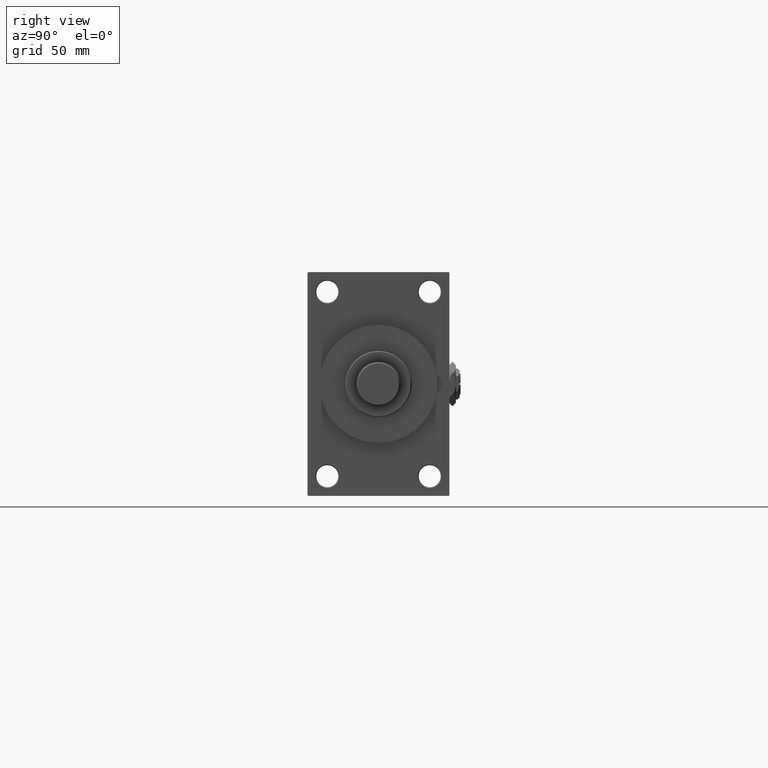
[diagram: clean part render]
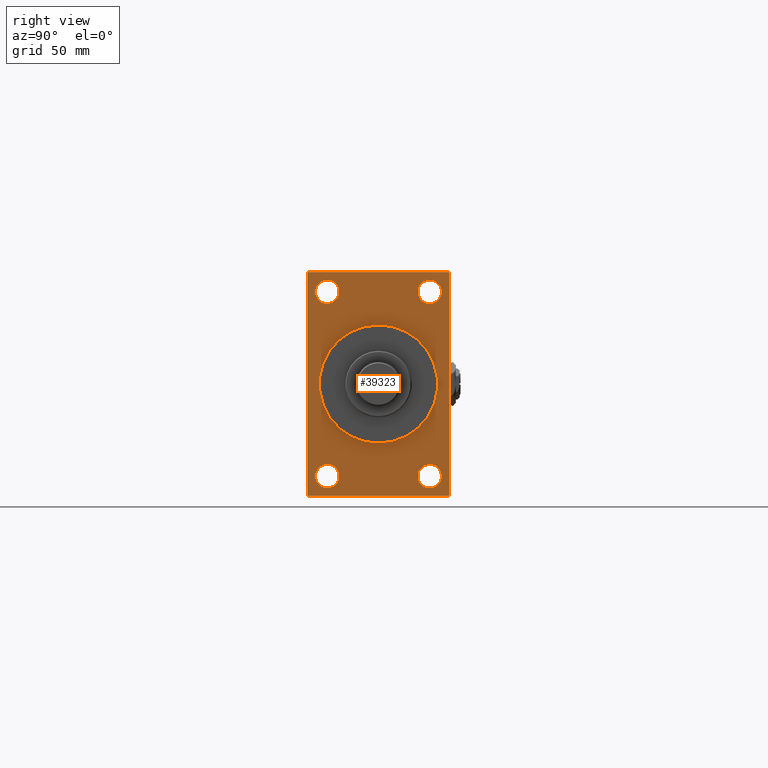
[diagram: same view with one face highlighted and labeled with its STEP entity id]
A machine part, right view. The second image highlights one B-rep face of the part: STEP entity #39323.
In plain terms, the highlighted planar face has unit normal (-1, 0, 0).
Its self-contained STEP definition (entity closure, byte-faithful):
#1305 = VECTOR ( 'NONE', #38583, 1000.000000000000000 ) ;
#1530 = CARTESIAN_POINT ( 'NONE',  ( 339.9999999999999432, 0.000000000000000000, 0.000000000000000000 ) ) ;
#1598 = ORIENTED_EDGE ( 'NONE', *, *, #34825, .T. ) ;
#2098 = DIRECTION ( 'NONE',  ( 0.000000000000000000, -1.000000000000000000, -1.541976423090495387E-16 ) ) ;
#2100 = VECTOR ( 'NONE', #2098, 1000.000000000000000 ) ;
#2327 = DIRECTION ( 'NONE',  ( 0.000000000000000000, -0.7071067811865867636, 0.7071067811865081598 ) ) ;
#2498 = VECTOR ( 'NONE', #31072, 1000.000000000000000 ) ;
#2869 = CARTESIAN_POINT ( 'NONE',  ( 339.9999999999999432, -32.50000000000000000, 66.00000000000017053 ) ) ;
#3069 = CARTESIAN_POINT ( 'NONE',  ( 339.9999999999999432, 44.49999999999996447, 71.00000000000000000 ) ) ;
#3102 = VERTEX_POINT ( 'NONE', #37685 ) ;
#3524 = EDGE_CURVE ( 'NONE', #31739, #35026, #30133, .T. ) ;
#3840 = FACE_BOUND ( 'NONE', #10158, .T. ) ;
#3925 = EDGE_CURVE ( 'NONE', #39463, #4102, #42993, .T. ) ;
#3940 = CARTESIAN_POINT ( 'NONE',  ( 339.9999999999999432, 32.50000000000000711, 58.50000000000000711 ) ) ;
#4102 = VERTEX_POINT ( 'NONE', #35182 ) ;
#4308 = DIRECTION ( 'NONE',  ( 0.000000000000000000, 0.000000000000000000, -1.000000000000000000 ) ) ;
#4371 = CARTESIAN_POINT ( 'NONE',  ( 339.9999999999999432, -44.99999999999997158, 70.99999999999998579 ) ) ;
#4386 = CARTESIAN_POINT ( 'NONE',  ( 339.9999999999999432, 32.50000000000000711, -66.00000000000017053 ) ) ;
#4610 = VERTEX_POINT ( 'NONE', #37075 ) ;
#5126 = CIRCLE ( 'NONE', #21229, 7.500000000000173195 ) ;
#5215 = ORIENTED_EDGE ( 'NONE', *, *, #24193, .F. ) ;
#5250 = VERTEX_POINT ( 'NONE', #2869 ) ;
#6339 = EDGE_CURVE ( 'NONE', #11398, #29758, #40134, .T. ) ;
#6575 = EDGE_CURVE ( 'NONE', #18270, #12016, #42339, .T. ) ;
#7087 = VERTEX_POINT ( 'NONE', #32162 ) ;
#7162 = CARTESIAN_POINT ( 'NONE',  ( 339.9999999999999432, -44.49999999999994316, -71.00000000000000000 ) ) ;
#7362 = FACE_OUTER_BOUND ( 'NONE', #30598, .T. ) ;
#7414 = CARTESIAN_POINT ( 'NONE',  ( 339.9999999999999432, 32.50000000000000711, -50.99999999999982236 ) ) ;
#7862 = FACE_BOUND ( 'NONE', #9412, .T. ) ;
#8110 = FACE_BOUND ( 'NONE', #28085, .T. ) ;
#8190 = CARTESIAN_POINT ( 'NONE',  ( 339.9999999999999432, 0.000000000000000000, 37.50000000000000711 ) ) ;
#9412 = EDGE_LOOP ( 'NONE', ( #28530, #26117 ) ) ;
#9448 = CARTESIAN_POINT ( 'NONE',  ( 339.9999999999999432, -32.50000000000000000, 58.50000000000000711 ) ) ;
#10158 = EDGE_LOOP ( 'NONE', ( #47290, #1598 ) ) ;
#10266 = CARTESIAN_POINT ( 'NONE',  ( 339.9999999999999432, 45.00000000000001421, -70.99999999999998579 ) ) ;
#10403 = CIRCLE ( 'NONE', #38569, 7.500000000000180300 ) ;
#10412 = EDGE_CURVE ( 'NONE', #15107, #45311, #42334, .T. ) ;
#10582 = EDGE_CURVE ( 'NONE', #39612, #45681, #41269, .T. ) ;
#10829 = CARTESIAN_POINT ( 'NONE',  ( 339.9999999999999432, 32.50000000000000711, 50.99999999999985079 ) ) ;
#10946 = AXIS2_PLACEMENT_3D ( 'NONE', #37286, #17649, #33028 ) ;
#11398 = VERTEX_POINT ( 'NONE', #3069 ) ;
#11525 = DIRECTION ( 'NONE',  ( -1.000000000000000000, 0.000000000000000000, -0.000000000000000000 ) ) ;
#11919 = LINE ( 'NONE', #4371, #2498 ) ;
#12016 = VERTEX_POINT ( 'NONE', #7162 ) ;
#12966 = ORIENTED_EDGE ( 'NONE', *, *, #10582, .F. ) ;
#14645 = CARTESIAN_POINT ( 'NONE',  ( 339.9999999999999432, 0.000000000000000000, 0.000000000000000000 ) ) ;
#14683 = VERTEX_POINT ( 'NONE', #42474 ) ;
#15107 = VERTEX_POINT ( 'NONE', #7414 ) ;
#15258 = EDGE_CURVE ( 'NONE', #3102, #45681, #46426, .T. ) ;
#15641 = CARTESIAN_POINT ( 'NONE',  ( 339.9999999999999432, -32.50000000000000000, 50.99999999999985079 ) ) ;
#15689 = DIRECTION ( 'NONE',  ( -1.000000000000000000, 0.000000000000000000, -0.000000000000000000 ) ) ;
#15745 = CARTESIAN_POINT ( 'NONE',  ( 339.9999999999999432, 45.00000000000001421, -70.49999999999997158 ) ) ;
#16075 = AXIS2_PLACEMENT_3D ( 'NONE', #9448, #17509, #44910 ) ;
#16534 = VECTOR ( 'NONE', #2327, 1000.000000000000000 ) ;
#17236 = AXIS2_PLACEMENT_3D ( 'NONE', #42610, #15689, #19205 ) ;
#17396 = VECTOR ( 'NONE', #18607, 1000.000000000000000 ) ;
#17509 = DIRECTION ( 'NONE',  ( -1.000000000000000000, 0.000000000000000000, -0.000000000000000000 ) ) ;
#17605 = CIRCLE ( 'NONE', #38540, 7.500000000000158984 ) ;
#17649 = DIRECTION ( 'NONE',  ( -1.000000000000000000, 0.000000000000000000, -0.000000000000000000 ) ) ;
#17887 = AXIS2_PLACEMENT_3D ( 'NONE', #28112, #43450, #24326 ) ;
#18134 = CARTESIAN_POINT ( 'NONE',  ( 339.9999999999999432, -44.99999999999997158, 70.49999999999992895 ) ) ;
#18270 = VERTEX_POINT ( 'NONE', #34799 ) ;
#18607 = DIRECTION ( 'NONE',  ( 0.000000000000000000, -4.886545002751570165E-17, -1.000000000000000000 ) ) ;
#19205 = DIRECTION ( 'NONE',  ( -0.000000000000000000, 0.000000000000000000, 1.000000000000000000 ) ) ;
#19533 = AXIS2_PLACEMENT_3D ( 'NONE', #14645, #29531, #30013 ) ;
#19847 = CARTESIAN_POINT ( 'NONE',  ( 339.9999999999999432, 32.50000000000000711, -58.50000000000000000 ) ) ;
#20245 = CARTESIAN_POINT ( 'NONE',  ( 339.9999999999999432, 4.592425496802575156E-15, -37.50000000000000711 ) ) ;
#20821 = ORIENTED_EDGE ( 'NONE', *, *, #47951, .T. ) ;
#21163 = DIRECTION ( 'NONE',  ( 0.000000000000000000, 0.000000000000000000, 1.000000000000000000 ) ) ;
#21229 = AXIS2_PLACEMENT_3D ( 'NONE', #19847, #11525, #42502 ) ;
#21697 = ORIENTED_EDGE ( 'NONE', *, *, #28238, .T. ) ;
#21853 = LINE ( 'NONE', #10266, #24425 ) ;
#22612 = EDGE_CURVE ( 'NONE', #35026, #31739, #38843, .T. ) ;
#22722 = PLANE ( 'NONE',  #17236 ) ;
#23393 = EDGE_CURVE ( 'NONE', #4610, #7087, #26827, .T. ) ;
#23611 = CARTESIAN_POINT ( 'NONE',  ( 339.9999999999999432, 45.00000000000002132, 70.50000000000000000 ) ) ;
#24193 = EDGE_CURVE ( 'NONE', #3102, #12016, #21853, .T. ) ;
#24326 = DIRECTION ( 'NONE',  ( 0.000000000000000000, 0.000000000000000000, 1.000000000000000000 ) ) ;
#24425 = VECTOR ( 'NONE', #44505, 1000.000000000000000 ) ;
#25235 = EDGE_LOOP ( 'NONE', ( #36032, #21697 ) ) ;
#25272 = EDGE_CURVE ( 'NONE', #29731, #5250, #31364, .T. ) ;
#25488 = LINE ( 'NONE', #47389, #16534 ) ;
#26117 = ORIENTED_EDGE ( 'NONE', *, *, #10412, .T. ) ;
#26282 = ORIENTED_EDGE ( 'NONE', *, *, #26676, .T. ) ;
#26676 = EDGE_CURVE ( 'NONE', #4102, #39463, #17605, .T. ) ;
#26827 = CIRCLE ( 'NONE', #28424, 7.500000000000180300 ) ;
#27269 = FACE_BOUND ( 'NONE', #25235, .T. ) ;
#28085 = EDGE_LOOP ( 'NONE', ( #40749, #35851 ) ) ;
#28112 = CARTESIAN_POINT ( 'NONE',  ( 339.9999999999999432, -32.50000000000000000, 58.50000000000000711 ) ) ;
#28238 = EDGE_CURVE ( 'NONE', #7087, #4610, #10403, .T. ) ;
#28424 = AXIS2_PLACEMENT_3D ( 'NONE', #39643, #39892, #47646 ) ;
#28530 = ORIENTED_EDGE ( 'NONE', *, *, #40813, .T. ) ;
#28651 = EDGE_LOOP ( 'NONE', ( #40532, #26282 ) ) ;
#29531 = DIRECTION ( 'NONE',  ( 1.000000000000000000, 0.000000000000000000, 0.000000000000000000 ) ) ;
#29731 = VERTEX_POINT ( 'NONE', #15641 ) ;
#29758 = VERTEX_POINT ( 'NONE', #48044 ) ;
#30013 = DIRECTION ( 'NONE',  ( 0.000000000000000000, 0.000000000000000000, -1.000000000000000000 ) ) ;
#30133 = CIRCLE ( 'NONE', #48585, 37.50000000000000711 ) ;
#30598 = EDGE_LOOP ( 'NONE', ( #39227, #48457, #5215, #46228, #12966, #41174, #48894, #20821 ) ) ;
#30864 = DIRECTION ( 'NONE',  ( 0.000000000000000000, 0.000000000000000000, 1.000000000000000000 ) ) ;
#31072 = DIRECTION ( 'NONE',  ( 0.000000000000000000, 0.000000000000000000, -1.000000000000000000 ) ) ;
#31364 = CIRCLE ( 'NONE', #16075, 7.500000000000158984 ) ;
#31531 = CARTESIAN_POINT ( 'NONE',  ( 339.9999999999999432, 45.00000000000001421, -70.49999999999997158 ) ) ;
#31739 = VERTEX_POINT ( 'NONE', #8190 ) ;
#31795 = CARTESIAN_POINT ( 'NONE',  ( 339.9999999999999432, -44.49999999999997158, -71.00000000000000000 ) ) ;
#32055 = EDGE_CURVE ( 'NONE', #14683, #18270, #11919, .T. ) ;
#32162 = CARTESIAN_POINT ( 'NONE',  ( 339.9999999999999432, -32.50000000000000000, -50.99999999999981526 ) ) ;
#32262 = DIRECTION ( 'NONE',  ( 1.000000000000000000, 0.000000000000000000, 0.000000000000000000 ) ) ;
#32277 = DIRECTION ( 'NONE',  ( -1.000000000000000000, 0.000000000000000000, -0.000000000000000000 ) ) ;
#33028 = DIRECTION ( 'NONE',  ( 0.000000000000000000, 0.000000000000000000, 1.000000000000000000 ) ) ;
#33998 = LINE ( 'NONE', #18134, #47182 ) ;
#34799 = CARTESIAN_POINT ( 'NONE',  ( 339.9999999999999432, -44.99999999999997158, -70.50000000000000000 ) ) ;
#34825 = EDGE_CURVE ( 'NONE', #5250, #29731, #48387, .T. ) ;
#35026 = VERTEX_POINT ( 'NONE', #20245 ) ;
#35141 = DIRECTION ( 'NONE',  ( -0.000000000000000000, 0.7071067811864985009, 0.7071067811865965336 ) ) ;
#35182 = CARTESIAN_POINT ( 'NONE',  ( 339.9999999999999432, 32.50000000000000711, 66.00000000000017053 ) ) ;
#35851 = ORIENTED_EDGE ( 'NONE', *, *, #22612, .F. ) ;
#36032 = ORIENTED_EDGE ( 'NONE', *, *, #23393, .T. ) ;
#37075 = CARTESIAN_POINT ( 'NONE',  ( 339.9999999999999432, -32.50000000000000000, -66.00000000000015632 ) ) ;
#37286 = CARTESIAN_POINT ( 'NONE',  ( 339.9999999999999432, 32.50000000000000711, -58.50000000000000000 ) ) ;
#37685 = CARTESIAN_POINT ( 'NONE',  ( 339.9999999999999432, 44.50000000000006395, -70.99999999999998579 ) ) ;
#37699 = DIRECTION ( 'NONE',  ( -1.000000000000000000, 0.000000000000000000, -0.000000000000000000 ) ) ;
#38540 = AXIS2_PLACEMENT_3D ( 'NONE', #40072, #32277, #21163 ) ;
#38569 = AXIS2_PLACEMENT_3D ( 'NONE', #46183, #38919, #30864 ) ;
#38583 = DIRECTION ( 'NONE',  ( 0.000000000000000000, 0.7071067811865573427, -0.7071067811865378028 ) ) ;
#38843 = CIRCLE ( 'NONE', #19533, 37.50000000000000711 ) ;
#38919 = DIRECTION ( 'NONE',  ( -1.000000000000000000, 0.000000000000000000, -0.000000000000000000 ) ) ;
#39227 = ORIENTED_EDGE ( 'NONE', *, *, #32055, .T. ) ;
#39323 = ADVANCED_FACE ( 'NONE', ( #3840, #27269, #7862, #42857, #8110, #7362 ), #22722, .F. ) ;
#39463 = VERTEX_POINT ( 'NONE', #10829 ) ;
#39612 = VERTEX_POINT ( 'NONE', #23611 ) ;
#39643 = CARTESIAN_POINT ( 'NONE',  ( 339.9999999999999432, -32.50000000000000000, -58.49999999999999289 ) ) ;
#39811 = AXIS2_PLACEMENT_3D ( 'NONE', #3940, #37699, #48725 ) ;
#39892 = DIRECTION ( 'NONE',  ( -1.000000000000000000, 0.000000000000000000, -0.000000000000000000 ) ) ;
#40072 = CARTESIAN_POINT ( 'NONE',  ( 339.9999999999999432, 32.50000000000000711, 58.50000000000000711 ) ) ;
#40094 = VECTOR ( 'NONE', #35141, 1000.000000000000114 ) ;
#40134 = LINE ( 'NONE', #44367, #2100 ) ;
#40532 = ORIENTED_EDGE ( 'NONE', *, *, #3925, .T. ) ;
#40749 = ORIENTED_EDGE ( 'NONE', *, *, #3524, .F. ) ;
#40813 = EDGE_CURVE ( 'NONE', #45311, #15107, #5126, .T. ) ;
#41174 = ORIENTED_EDGE ( 'NONE', *, *, #44495, .T. ) ;
#41269 = LINE ( 'NONE', #42005, #17396 ) ;
#41531 = DIRECTION ( 'NONE',  ( -0.000000000000000000, -0.7071067811865426878, -0.7071067811865524577 ) ) ;
#42005 = CARTESIAN_POINT ( 'NONE',  ( 339.9999999999999432, 45.00000000000002132, 71.00000000000000000 ) ) ;
#42334 = CIRCLE ( 'NONE', #10946, 7.500000000000173195 ) ;
#42339 = LINE ( 'NONE', #31795, #1305 ) ;
#42474 = CARTESIAN_POINT ( 'NONE',  ( 339.9999999999999432, -44.99999999999997158, 70.49999999999992895 ) ) ;
#42502 = DIRECTION ( 'NONE',  ( 0.000000000000000000, 0.000000000000000000, 1.000000000000000000 ) ) ;
#42610 = CARTESIAN_POINT ( 'NONE',  ( 339.9999999999999432, 0.000000000000000000, 0.000000000000000000 ) ) ;
#42857 = FACE_BOUND ( 'NONE', #28651, .T. ) ;
#42993 = CIRCLE ( 'NONE', #39811, 7.500000000000158984 ) ;
#43450 = DIRECTION ( 'NONE',  ( -1.000000000000000000, 0.000000000000000000, -0.000000000000000000 ) ) ;
#44367 = CARTESIAN_POINT ( 'NONE',  ( 339.9999999999999432, 45.00000000000002132, 71.00000000000000000 ) ) ;
#44495 = EDGE_CURVE ( 'NONE', #39612, #11398, #25488, .T. ) ;
#44505 = DIRECTION ( 'NONE',  ( 0.000000000000000000, -1.000000000000000000, -1.541976423090495633E-16 ) ) ;
#44910 = DIRECTION ( 'NONE',  ( 0.000000000000000000, 0.000000000000000000, 1.000000000000000000 ) ) ;
#45311 = VERTEX_POINT ( 'NONE', #4386 ) ;
#45681 = VERTEX_POINT ( 'NONE', #31531 ) ;
#46183 = CARTESIAN_POINT ( 'NONE',  ( 339.9999999999999432, -32.50000000000000000, -58.49999999999999289 ) ) ;
#46228 = ORIENTED_EDGE ( 'NONE', *, *, #15258, .T. ) ;
#46426 = LINE ( 'NONE', #15745, #40094 ) ;
#47182 = VECTOR ( 'NONE', #41531, 1000.000000000000000 ) ;
#47290 = ORIENTED_EDGE ( 'NONE', *, *, #25272, .T. ) ;
#47389 = CARTESIAN_POINT ( 'NONE',  ( 339.9999999999999432, 44.49999999999996447, 71.00000000000000000 ) ) ;
#47646 = DIRECTION ( 'NONE',  ( 0.000000000000000000, 0.000000000000000000, 1.000000000000000000 ) ) ;
#47951 = EDGE_CURVE ( 'NONE', #29758, #14683, #33998, .T. ) ;
#48044 = CARTESIAN_POINT ( 'NONE',  ( 339.9999999999999432, -44.49999999999989342, 70.99999999999998579 ) ) ;
#48387 = CIRCLE ( 'NONE', #17887, 7.500000000000158984 ) ;
#48457 = ORIENTED_EDGE ( 'NONE', *, *, #6575, .T. ) ;
#48585 = AXIS2_PLACEMENT_3D ( 'NONE', #1530, #32262, #4308 ) ;
#48725 = DIRECTION ( 'NONE',  ( 0.000000000000000000, 0.000000000000000000, 1.000000000000000000 ) ) ;
#48894 = ORIENTED_EDGE ( 'NONE', *, *, #6339, .T. ) ;